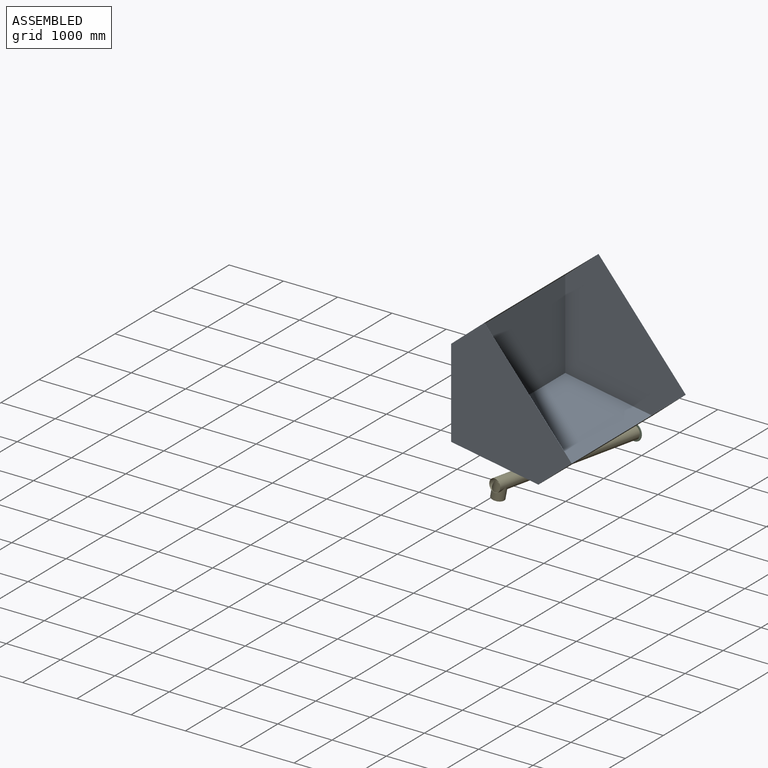
[diagram: assembled view]
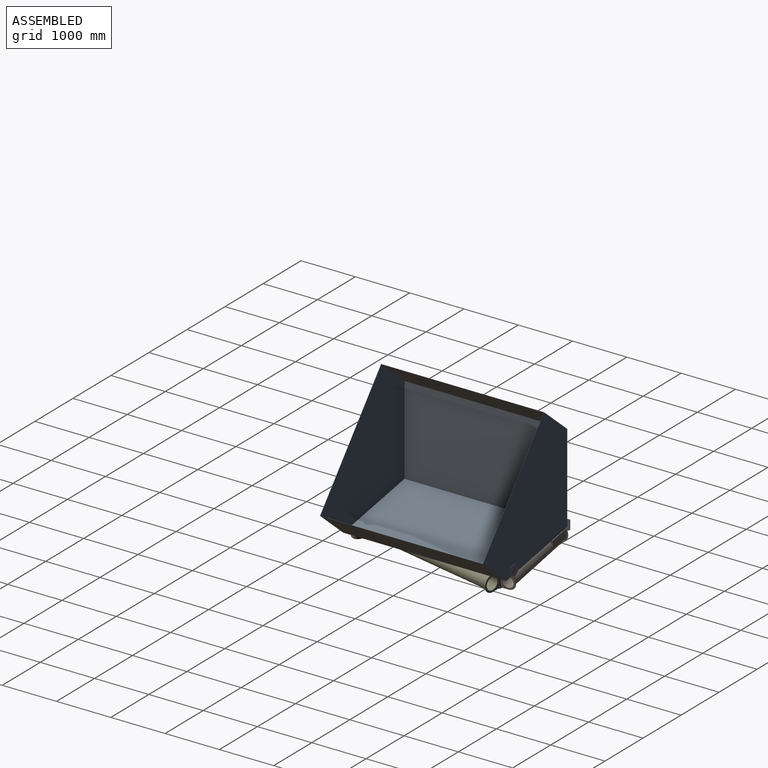
[diagram: assembled view, second angle]
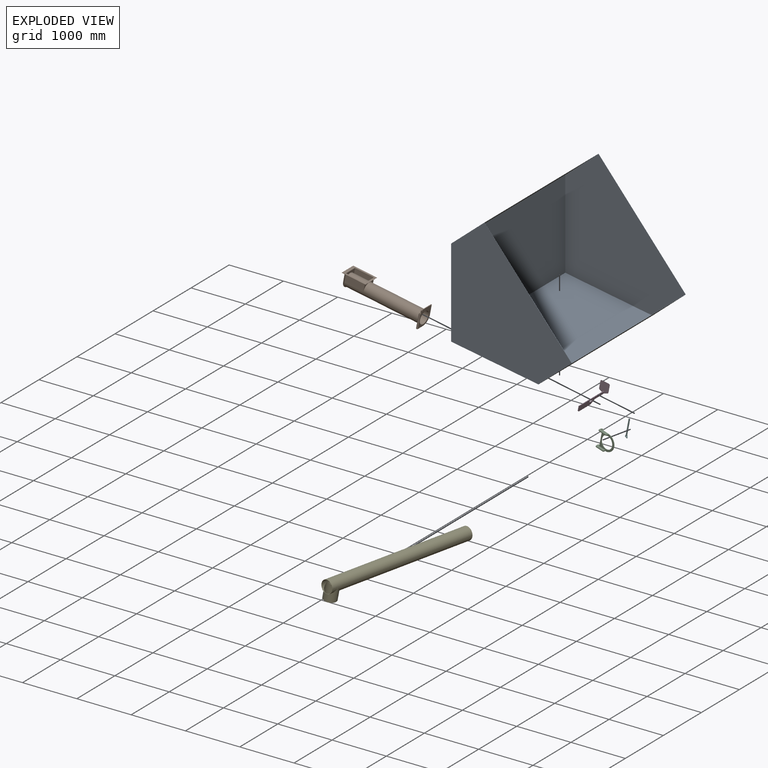
[diagram: exploded view]
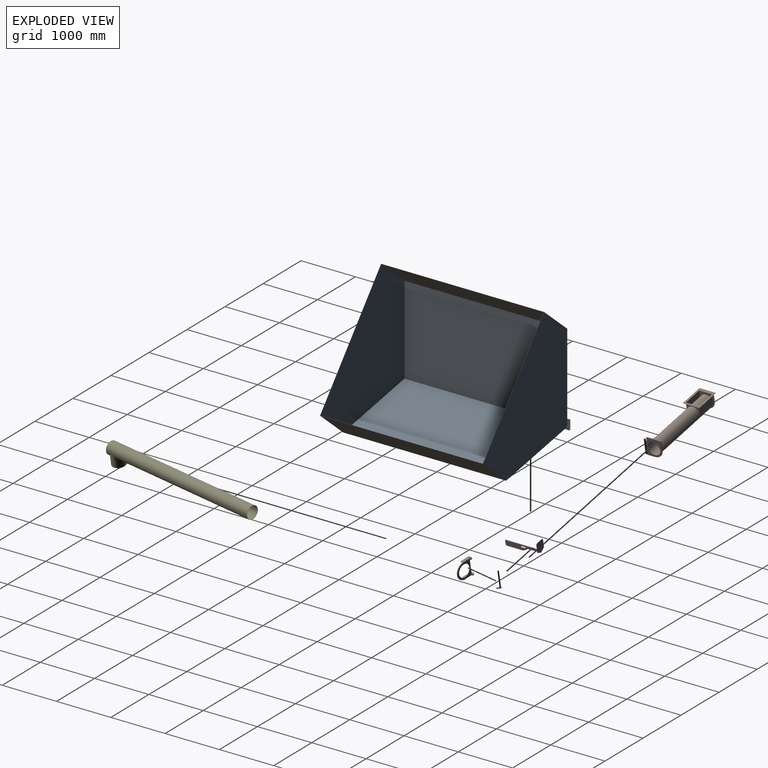
[diagram: exploded view, second angle]
ASSEMBLY  parts=6 mates=6
PART A: 26 faces, bbox 2500x3050x1884.8 mm
  f0: plane 3000x1250mm, normal (0.64,0,-0.77), area 4895226.6mm2, adj f3,f4,f5,f6,f13,f15,f16,f18
  f1: plane 3000x2500mm, normal (0,0,1), area 27475mm2, adj f2,f4,f5,f6,f7,f10,f11,f12
  f2: plane 3000x800mm, normal (-1,0,0), area 2400000mm2, adj f1,f3,f5,f6
  f3: plane 3000x1250mm, normal (-0.64,0,-0.77), area 4895277.3mm2, adj f0,f2,f5,f6,f14,f18
  f4: plane 3000x800mm, normal (1,0,0), area 2400000mm2, adj f0,f1,f5,f6
  f5: plane 2500x1848.87mm, normal (0,-1,0), area 3311093.2mm2, adj f0,f1,f2,f3,f4
  f6: plane 2500x1848.22mm, normal (0,1,0), area 3310958.1mm2, adj f0,f1,f2,f3,f4,f16,f19
  f7: plane 2995x798.83mm, normal (1,0,0), area 2392508.5mm2, adj f1,f8,f11,f12
  f8: plane 2995x1247.5mm, normal (0.64,0,0.77), area 4877344.3mm2, adj f7,f9,f11,f12
  f9: plane 2995x1247.5mm, normal (-0.64,0,0.77), area 4877344.3mm2, adj f8,f10,f11,f12
  f10: plane 2995x798.83mm, normal (-1,0,0), area 2392508.5mm2, adj f1,f9,f11,f12
  f11: plane 2495x1845.61mm, normal (0,1,0), area 3298945.5mm2, adj f1,f7,f8,f9,f10
  f12: plane 2495x1845.61mm, normal (0,-1,0), area 3298945.5mm2, adj f1,f7,f8,f9,f10
  f13: plane 38.33x33.41mm, normal (0,-1,0), area 269.9mm2, adj f0,f14,f16,f24,f25
  f14: plane 50x3.83mm, normal (-0.77,0,0.64), area 250mm2, adj f3,f13,f15,f25
  f15: plane 8.45x8.34mm, normal (0,1,0), area 35.9mm2, adj f0,f14,f16,f17,f25
  f16: plane 401x141.72mm, normal (0.64,0,0.77), area 24888.6mm2, adj f0,f6,f13,f15,f17,f18,f19,f20
  f17: plane 301x4.6mm, normal (-0.77,0,0.64), area 1806mm2, adj f15,f16,f18,f25
  f18: plane 111.87x94.46mm, normal (0,-1,0), area 710.9mm2, adj f0,f3,f16,f17,f19,f25
  f19: plane 45x4.6mm, normal (-0.77,0,0.64), area 270mm2, adj f6,f16,f18,f20,f25
  f20: cylinder r=5mm len=7.81mm, axis (0.64,0,0.77), area 47.1mm2, adj f16,f19,f21,f25
  f21: plane 126.42x107.44mm, normal (0,1,0), area 960mm2, adj f16,f20,f22,f25
  f22: cylinder r=20mm len=20mm, axis (0.64,0,0.77), area 188.5mm2, adj f16,f21,f23,f25
  f23: plane 376x4.6mm, normal (0.77,0,-0.64), area 2256mm2, adj f16,f22,f24,f25
  f24: cylinder r=5mm len=7.81mm, axis (0.64,0,0.77), area 47.1mm2, adj f13,f16,f23,f25
  f25: plane 401x141.72mm, normal (-0.64,0,-0.77), area 24897.4mm2, adj f13,f14,f15,f17,f18,f19,f20,f21
PART B: 48 faces, bbox 321.6x1484.5x325 mm
  f0: plane 300x280.23mm, normal (0,1,0), area 30533.4mm2, adj f1,f2,f3,f5,f22,f23,f29,f33
  f1: cylinder r=5mm len=300mm, axis (-1,0,0), area 2282.7mm2, adj f0,f2,f23,f27,f33,f35,f36,f37
  f2: plane 135.23x55mm, normal (1,0,0), area 920.5mm2, adj f0,f1,f24,f25,f26,f27,f29,f36
  f3: plane 354.92x147mm, normal (-1,0,0), area 52172.8mm2, adj f0,f4,f38,f43
  f4: plane 239.3x147mm, normal (0,1,0), area 15276.2mm2, adj f3,f5,f22,f38,f39,f43
  f5: plane 354.92x147mm, normal (1,0,0), area 52172.8mm2, adj f0,f4,f39,f43
  f6: cylinder r=12mm len=266mm, axis (0,0,1), area 20055.9mm2, adj f8,f9
  f7: cylinder r=17.5mm len=266mm, axis (0,0,1), area 28279.6mm2, adj f8,f9,f15,f16,f21
  f8: plane 35x35mm, normal (0,0,-1), area 509.7mm2, adj f6,f7
  f9: plane 35x35mm, normal (0,0,1), area 508.3mm2, adj f6,f7,f15,f21
  f10: plane 260x12mm, normal (0,0,-1), area 3120mm2, adj f11,f19,f20,f21
  f11: cylinder r=5mm len=12mm, axis (0,1,0), area 94.2mm2, adj f10,f12,f20,f21
  f12: plane 170x12mm, normal (1,0,0), area 2040mm2, adj f11,f13,f20,f21
  f13: cylinder r=150mm len=150mm, axis (0,1,0), area 2827.4mm2, adj f12,f14,f20,f21
  f14: plane 135x12mm, normal (0,0,1), area 1620mm2, adj f13,f15,f20,f21
  f15: plane 248x12mm, normal (-1,0,0), area 2016.5mm2, adj f7,f9,f14,f16,f20,f21
  f16: plane 15x12mm, normal (0,0,-1), area 178.6mm2, adj f7,f15,f17,f20,f21
  f17: plane 72.01x12mm, normal (-1,0,0), area 864.1mm2, adj f16,f19,f20,f21
  f18: cylinder r=115mm len=1412mm, axis (0,1,0), area 1019395.4mm2, adj f21,f28,f40,f41,f42
  f19: cylinder r=5mm len=12mm, axis (0,1,0), area 94.2mm2, adj f10,f17,f20,f21
  f20: plane 325x285mm, normal (0,-1,0), area 43244mm2, adj f10,f11,f12,f13,f14,f15,f16,f17
  f21: plane 325x285mm, normal (0,1,0), area 44659.7mm2, adj f7,f9,f10,f11,f12,f13,f14,f15
  f22: cylinder r=117.1mm len=1400mm, axis (0,1,0), area 1029180.7mm2, adj f0,f4,f20,f34,f38,f39
  f23: plane 135.23x55mm, normal (-1,0,0), area 920.5mm2, adj f0,f1,f24,f25,f26,f27,f29,f37
  f24: plane 300x5mm, normal (0,-1,0), area 1500mm2, adj f2,f23,f25,f27
  f25: plane 300x50mm, normal (0,0,1), area 15000mm2, adj f2,f23,f24,f26
  f26: plane 300x280.21mm, normal (0,-1,0), area 73699.7mm2, adj f2,f23,f25,f29,f47
  f27: plane 300x50mm, normal (0,0,-1), area 15000mm2, adj f1,f2,f23,f24
  f28: plane 230x230mm, normal (0,1,0), area 40840.7mm2, adj f18,f47
  f29: cylinder r=150mm len=300mm, axis (0,1,0), area 2356.2mm2, adj f0,f2,f23,f26
  f30: cylinder r=7mm len=14mm, axis (0,1,0), area 527.8mm2, adj f20,f21
  f31: cylinder r=7mm len=14mm, axis (0,1,0), area 527.8mm2, adj f20,f21
  f32: plane 387.54x304.3mm, normal (0,0,-1), area 35328.5mm2, adj f33,f34,f35,f36,f37,f44,f45,f46
  f33: plane 352.54x150mm, normal (-1,0,0), area 52862.7mm2, adj f0,f1,f32,f34,f36,f39
  f34: plane 234.3x150mm, normal (0,-1,0), area 15244.1mm2, adj f22,f32,f33,f35,f38,f39
  f35: plane 352.54x150mm, normal (1,0,0), area 52862.7mm2, adj f0,f1,f32,f34,f37,f38
  f36: plane 35x3mm, normal (0,-1,0), area 39.9mm2, adj f1,f2,f32,f33,f43,f44
  f37: plane 35x3mm, normal (0,-1,0), area 31.5mm2, adj f1,f23,f32,f35,f43,f45
  f38: plane 354.92x2.78mm, normal (0,0,1), area 888mm2, adj f0,f3,f4,f22,f34,f35
  f39: plane 354.92x2.74mm, normal (0,0,1), area 887.9mm2, adj f0,f4,f5,f22,f33,f34
  f40: plane 229.57x108mm, normal (0,1,0), area 19164.8mm2, adj f18,f42
  f41: plane 229.57x108mm, normal (0,-1,0), area 19164.8mm2, adj f18,f42
  f42: plane 229.57x2.5mm, normal (0,0,1), area 573.9mm2, adj f18,f40,f41
  f43: plane 387.54x304.3mm, normal (0,0,1), area 32959.9mm2, adj f0,f2,f3,f4,f5,f23,f36,f37
  f44: plane 387.54x3mm, normal (1,0,0), area 1162.6mm2, adj f32,f36,f43,f46
  f45: plane 387.54x3mm, normal (-1,0,0), area 1162.6mm2, adj f32,f37,f43,f46
  f46: plane 304.3x3mm, normal (0,1,0), area 912.9mm2, adj f32,f43,f44,f45
  f47: cylinder r=15mm len=30mm, axis (0,-1,0), area 471.2mm2, adj f26,f28
PART C: 21 faces, bbox 327x82x300 mm
  f0: plane 300x285mm, normal (0,1,0), area 29975.4mm2, adj f2,f4,f6,f11,f13,f16,f19
  f1: plane 300x285mm, normal (0,-1,0), area 34039.4mm2, adj f2,f3,f4,f5,f6,f7,f13,f15
  f2: plane 268x12mm, normal (-1,0,0), area 3216mm2, adj f0,f1,f13,f19
  f3: plane 177x82mm, normal (0,0,1), area 10858.1mm2, adj f1,f4,f14,f15,f16,f17,f18,f20
  f4: cylinder r=150mm len=300mm, axis (0,-1,0), area 5654.9mm2, adj f0,f1,f3,f5
  f5: plane 177x82mm, normal (0,0,-1), area 10484.2mm2, adj f1,f4,f7,f8,f9,f10,f11,f12
  f6: cylinder r=115mm len=230mm, axis (0,-1,0), area 8670.8mm2, adj f0,f1
  f7: cylinder r=25mm len=50mm, axis (0,0,-1), area 1256.6mm2, adj f1,f5,f8,f13
  f8: plane 32x16mm, normal (-1,0,0), area 512mm2, adj f5,f7,f9,f13
  f9: cylinder r=25mm len=25mm, axis (0,0,-1), area 628.3mm2, adj f5,f8,f10,f13
  f10: plane 152x16mm, normal (0,1,0), area 2432mm2, adj f5,f9,f11,f13
  f11: plane 45x16mm, normal (1,0,0), area 720mm2, adj f0,f5,f10,f13
  f12: cylinder r=12mm len=24mm, axis (0,0,-1), area 1206.4mm2, adj f5,f13
  f13: plane 177x82mm, normal (0,0,1), area 8864.2mm2, adj f0,f1,f2,f7,f8,f9,f10,f11
  f14: plane 32x16mm, normal (-1,0,0), area 512mm2, adj f3,f15,f18,f19
  f15: cylinder r=25mm len=50mm, axis (0,0,1), area 1256.6mm2, adj f1,f3,f14,f19
  f16: plane 45x16mm, normal (1,0,0), area 720mm2, adj f0,f3,f17,f19
  f17: plane 152x16mm, normal (0,1,0), area 2432mm2, adj f3,f16,f18,f19
  f18: cylinder r=25mm len=25mm, axis (0,0,1), area 628.3mm2, adj f3,f14,f17,f19
  f19: plane 177x82mm, normal (0,0,-1), area 9238.1mm2, adj f0,f1,f2,f14,f15,f16,f17,f18
  f20: cylinder r=5mm len=16mm, axis (0,0,1), area 502.7mm2, adj f3,f19
PART D: 29 faces, bbox 653x173.5x263.9 mm
  f0: plane 291.34x12mm, normal (0,0,-1), area 3496.1mm2, adj f1,f10,f11,f12
  f1: cylinder r=25mm len=12.5mm, axis (0,1,0), area 157.1mm2, adj f0,f2,f11,f12
  f2: plane 83.66x48.3mm, normal (0.5,0,-0.87), area 1159.2mm2, adj f1,f3,f11,f12
  f3: cylinder r=25mm len=12.5mm, axis (0,1,0), area 157.1mm2, adj f2,f4,f11,f12
  f4: plane 220x12mm, normal (0,0,-1), area 2640mm2, adj f3,f5,f11,f12
  f5: cylinder r=5mm len=12mm, axis (0,1,0), area 94.2mm2, adj f4,f11,f12,f17
  f6: plane 650x12mm, normal (0,0,1), area 7800mm2, adj f7,f11,f12,f28
  f7: plane 75x12mm, normal (-1,0,0), area 900mm2, adj f6,f10,f11,f12
  f8: cylinder r=7mm len=14mm, axis (0,1,0), area 527.8mm2, adj f11,f12
  f9: cylinder r=7mm len=14mm, axis (0,1,0), area 527.8mm2, adj f11,f12
  f10: cylinder r=25mm len=25mm, axis (0,1,0), area 471.2mm2, adj f0,f7,f11,f12
  f11: plane 650x100mm, normal (0,-1,0), area 47064.5mm2, adj f0,f1,f2,f3,f4,f5,f6,f7
  f12: plane 650x100mm, normal (0,1,0), area 47064.5mm2, adj f0,f1,f2,f3,f4,f5,f6,f7
  f13: plane 25x12mm, normal (-1,0,0), area 300mm2, adj f11,f12,f14,f16
  f14: plane 85x12mm, normal (0,0,1), area 1020mm2, adj f11,f12,f13,f15
  f15: plane 25x12mm, normal (1,0,0), area 300mm2, adj f11,f12,f14,f16
  f16: plane 85x12mm, normal (0,0,-1), area 1020mm2, adj f11,f12,f13,f15
  f17: plane 12x3mm, normal (0,0,-1), area 36mm2, adj f5,f18,f26,f27
  f18: plane 66.83x33.11mm, normal (0,0.44,-0.9), area 223.7mm2, adj f17,f19,f27,f28
  f19: cylinder r=25mm len=22.4mm, axis (-1,0,0), area 83.3mm2, adj f18,f20,f27,f28
  f20: plane 123.42x3mm, normal (0,1,0), area 370.3mm2, adj f19,f21,f27,f28
  f21: cylinder r=25mm len=25mm, axis (-1,0,0), area 117.8mm2, adj f20,f22,f27,f28
  f22: plane 123.46x3mm, normal (0,0,1), area 370.4mm2, adj f21,f23,f27,f28
  f23: cylinder r=25mm len=25mm, axis (-1,0,0), area 117.8mm2, adj f22,f24,f27,f28
  f24: plane 123.42x3mm, normal (0,-1,0), area 370.3mm2, adj f23,f25,f27,f28
  f25: cylinder r=25mm len=22.4mm, axis (-1,0,0), area 83.3mm2, adj f24,f26,f27,f28
  f26: plane 66.83x33.11mm, normal (0,-0.44,-0.9), area 223.7mm2, adj f17,f25,f27,f28
  f27: plane 203.93x173.46mm, normal (1,0,0), area 31794.4mm2, adj f17,f18,f19,f20,f21,f22,f23,f24
  f28: plane 203.93x173.46mm, normal (-1,0,0), area 31314.4mm2, adj f6,f11,f12,f18,f19,f20,f21,f22
PART E: 9 faces, bbox 235x3000x367.1 mm
  f0: cylinder r=115mm len=250mm, axis (0,0,-1), area 127741.6mm2, adj f2,f7
  f1: cylinder r=117.1mm len=3000mm, axis (0,-1,0), area 2151612.4mm2, adj f3,f4,f5,f6,f8
  f2: cylinder r=115mm len=3000mm, axis (0,-1,0), area 2114799mm2, adj f0,f3,f4
  f3: plane 234.2x234.2mm, normal (0,1,0), area 1531.2mm2, adj f1,f2
  f4: plane 234.2x234.2mm, normal (0,-1,0), area 1531.2mm2, adj f1,f2
  f5: plane 19.37x0.4mm, normal (0,0,-1), area 5.2mm2, adj f1,f6
  f6: cylinder r=117.5mm len=250mm, axis (0,0,-1), area 130166.7mm2, adj f1,f5,f7,f8
  f7: plane 235x235mm, normal (0,0,1), area 1826.1mm2, adj f0,f6
  f8: plane 19.37x0.4mm, normal (0,0,-1), area 5.2mm2, adj f1,f6
PART F: 11 faces, bbox 72x57x315 mm
  f0: cylinder r=12mm len=301mm, axis (0,0,-1), area 22694.9mm2, adj f1,f7
  f1: plane 24x24mm, normal (0,0,-1), area 452.4mm2, adj f0
  f2: plane 35.02x34.16mm, normal (0.7,-0.72,0), area 489.2mm2, adj f3,f6,f7,f8
  f3: cylinder r=10mm len=17.16mm, axis (0,0,1), area 273.8mm2, adj f2,f4,f7,f8
  f4: plane 45.61x17.68mm, normal (-0.36,0.93,0), area 489.2mm2, adj f3,f6,f7,f8
  f5: cylinder r=5mm len=10mm, axis (0,0,1), area 314.2mm2, adj f7,f8
  f6: cylinder r=20mm len=38.65mm, axis (0,0,1), area 709mm2, adj f2,f4,f7,f8
  f7: plane 72x57mm, normal (0,0,-1), area 1782.5mm2, adj f0,f2,f3,f4,f5,f6
  f8: plane 72x57mm, normal (0,0,1), area 1782.5mm2, adj f2,f3,f4,f5,f6,f10
  f9: plane 24x24mm, normal (0,0,1), area 452.4mm2, adj f10
  f10: cylinder r=12mm len=24mm, axis (0,0,-1), area 301.6mm2, adj f8,f9
PLACE A rot(axis=(0,1,0),50deg) t=(-571.71,-1194.31,-679.99)mm fixed
PLACE B rot(axis=(-0.71,-0.71,0.07),172.4deg) t=(792.2,-1494.31,-1103.58)mm
PLACE C rot(axis=(0.99,-0.09,-0.09),179.1deg) t=(792.2,-1494.31,-1103.58)mm
PLACE D rot(axis=(0.09,0.09,0.99),90.5deg) t=(802.33,-1477.31,-922.27)mm
PLACE E rot(axis=(0.99,-0.09,-0.09),179.1deg) t=(792.2,-1494.31,-1103.58)mm
PLACE F rot(axis=(0.99,-0.09,-0.09),179.1deg) t=(792.2,-1494.31,-1103.58)mm
MATE fastened E.f1 <-> C.f6  axis (0.17,0.98,-0.03) through (939.24,-1520.71,-1131.61)mm
MATE parallel B.f12 <-> A.f6  axis (0,1,0) through (802.22,-1192.31,-1018.96)mm
MATE ball A.f16 <-> B.f26  axis (1,0,0) through (-570.71,-1194.31,-685.99)mm
MATE fastened D.f8 <-> B.f31  axis (0.98,0,-0.19) through (810.84,-1437.31,-941.7)mm
MATE fastened F.f0 <-> C.f7  axis (0.19,0,0.98) through (820.29,-1494.31,-956.23)mm
MATE revolute C.f7 <-> B.f6  axis (0.19,0,0.98) through (820.29,-1494.31,-956.23)mm
